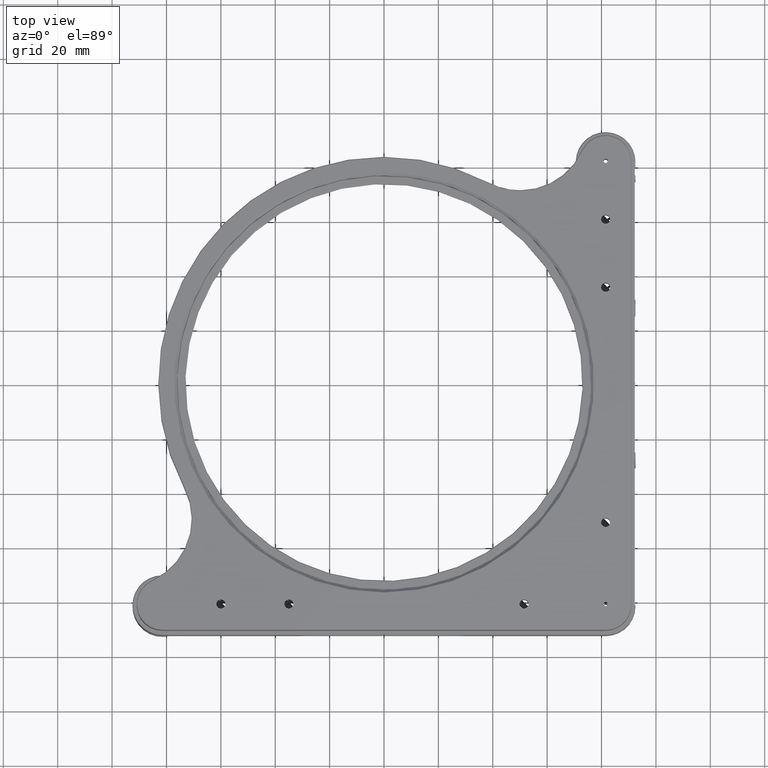
[diagram: clean part render]
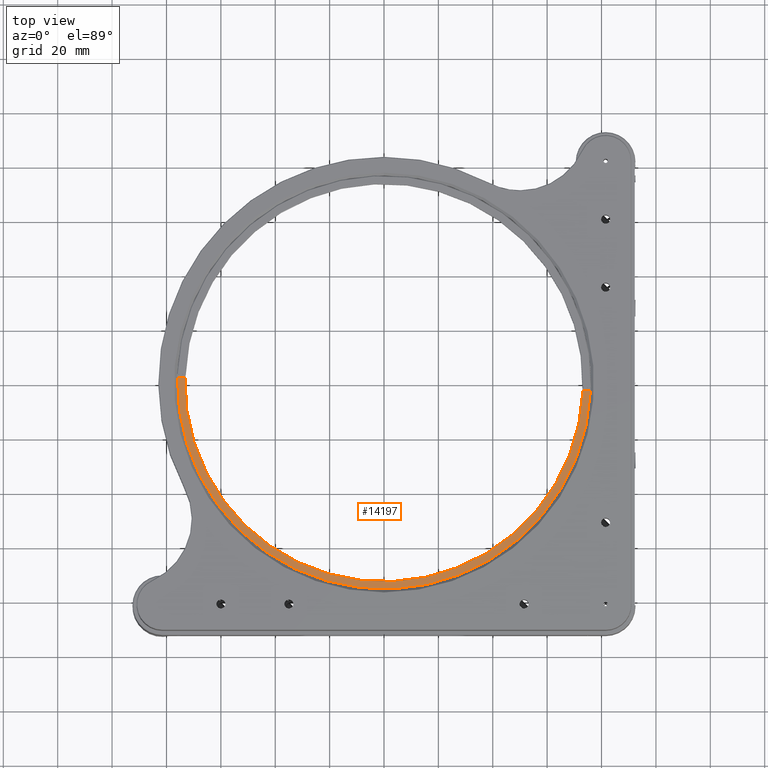
[diagram: same view with one face highlighted and labeled with its STEP entity id]
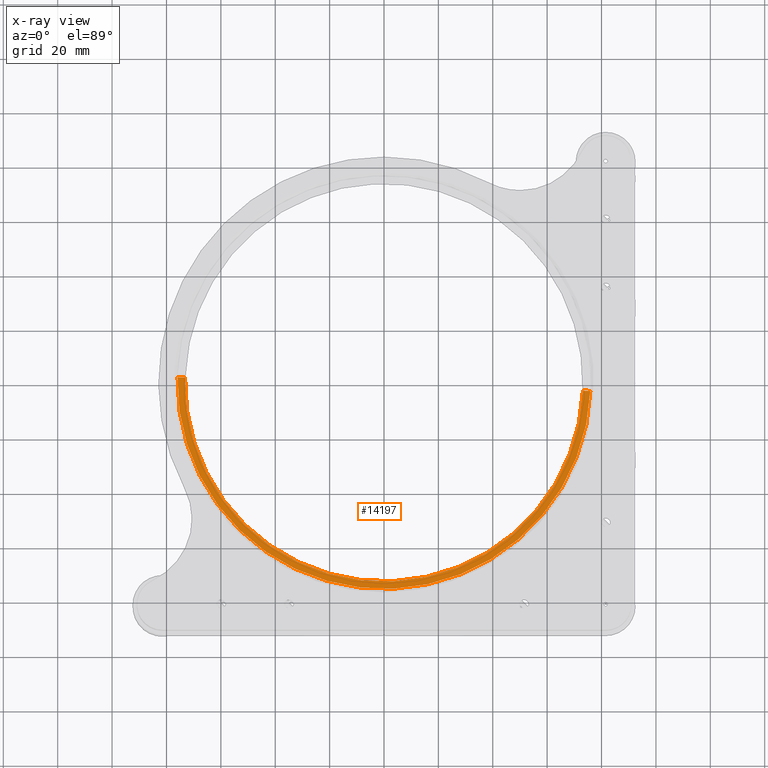
[diagram: x-ray of the same camera — body ghosted, the highlighted face saturated]
A machine part, top view. The second image highlights one B-rep face of the part: STEP entity #14197.
The next image is the same camera in x-ray: the body ghosted, the highlighted face saturated — about 0% of this face is hidden behind the body in this view.
In plain terms, the highlighted planar face has unit normal (0, 0, 1).
Its self-contained STEP definition (entity closure, byte-faithful):
#273 = EDGE_CURVE ( 'NONE', #14701, #4792, #14715, .T. ) ;
#390 = VECTOR ( 'NONE', #15418, 1000.000000000000000 ) ;
#433 = CARTESIAN_POINT ( 'NONE',  ( -6.696032378222366745E-13, 5.872038966181489995E-13, 34.49528137423860130 ) ) ;
#1407 = PLANE ( 'NONE',  #7364 ) ;
#2355 = CARTESIAN_POINT ( 'NONE',  ( -6.696032378222366745E-13, 5.872038966181489995E-13, 34.49528137423860130 ) ) ;
#2704 = DIRECTION ( 'NONE',  ( -0.000000000000000000, -0.000000000000000000, -1.000000000000000000 ) ) ;
#2885 = DIRECTION ( 'NONE',  ( 0.9994441930894798487, -0.03333624003571092342, 0.000000000000000000 ) ) ;
#3525 = LINE ( 'NONE', #9221, #11886 ) ;
#4174 = CARTESIAN_POINT ( 'NONE',  ( -49972.22965621801995, 1666.212335269693995, 34.49528137423860130 ) ) ;
#4618 = CARTESIAN_POINT ( 'NONE',  ( 73.18682938650680114, -3.041464178689262887, 34.49528137423860130 ) ) ;
#4792 = VERTEX_POINT ( 'NONE', #6768 ) ;
#4972 = ORIENTED_EDGE ( 'NONE', *, *, #10110, .T. ) ;
#6446 = VERTEX_POINT ( 'NONE', #4618 ) ;
#6768 = CARTESIAN_POINT ( 'NONE',  ( 75.88541602116751505, -3.131474939102131483, 34.49528137423860130 ) ) ;
#6825 = DIRECTION ( 'NONE',  ( 0.000000000000000000, 0.000000000000000000, 1.000000000000000000 ) ) ;
#7364 = AXIS2_PLACEMENT_3D ( 'NONE', #16663, #6825, #14064 ) ;
#7453 = EDGE_CURVE ( 'NONE', #14701, #12133, #17918, .T. ) ;
#7613 = DIRECTION ( 'NONE',  ( 0.9994441930894799597, -0.03333624003571091649, 0.000000000000000000 ) ) ;
#7638 = ORIENTED_EDGE ( 'NONE', *, *, #273, .T. ) ;
#8806 = AXIS2_PLACEMENT_3D ( 'NONE', #433, #10587, #7613 ) ;
#9221 = CARTESIAN_POINT ( 'NONE',  ( -49972.22965621801995, 1666.212335269693995, 34.49528137423860130 ) ) ;
#10110 = EDGE_CURVE ( 'NONE', #6446, #12133, #14688, .T. ) ;
#10587 = DIRECTION ( 'NONE',  ( 0.000000000000000000, 0.000000000000000000, 1.000000000000000000 ) ) ;
#10776 = ORIENTED_EDGE ( 'NONE', *, *, #7453, .F. ) ;
#11886 = VECTOR ( 'NONE', #13842, 1000.000000000000000 ) ;
#12133 = VERTEX_POINT ( 'NONE', #12625 ) ;
#12555 = CARTESIAN_POINT ( 'NONE',  ( -75.92541950921170724, 1.932141907395929836, 34.49528137423860130 ) ) ;
#12625 = CARTESIAN_POINT ( 'NONE',  ( -73.22683287455100754, 1.842131146983060574, 34.49528137423860130 ) ) ;
#13418 = EDGE_LOOP ( 'NONE', ( #10776, #7638, #15513, #4972 ) ) ;
#13842 = DIRECTION ( 'NONE',  ( 0.9994441930894798487, -0.03333624003571091649, 0.000000000000000000 ) ) ;
#14064 = DIRECTION ( 'NONE',  ( 0.9994441930894798487, -0.03333624003571091649, 0.000000000000000000 ) ) ;
#14197 = ADVANCED_FACE ( 'NONE', ( #17019 ), #1407, .T. ) ;
#14688 = CIRCLE ( 'NONE', #17349, 73.25000000000005684 ) ;
#14701 = VERTEX_POINT ( 'NONE', #12555 ) ;
#14715 = CIRCLE ( 'NONE', #8806, 75.94999999999998863 ) ;
#15418 = DIRECTION ( 'NONE',  ( 0.9994441930894798487, -0.03333624003571091649, 0.000000000000000000 ) ) ;
#15513 = ORIENTED_EDGE ( 'NONE', *, *, #17622, .F. ) ;
#16663 = CARTESIAN_POINT ( 'NONE',  ( -6.696032378222366745E-13, 5.872038966181489995E-13, 34.49528137423860130 ) ) ;
#17019 = FACE_OUTER_BOUND ( 'NONE', #13418, .T. ) ;
#17349 = AXIS2_PLACEMENT_3D ( 'NONE', #2355, #2704, #2885 ) ;
#17622 = EDGE_CURVE ( 'NONE', #6446, #4792, #3525, .T. ) ;
#17918 = LINE ( 'NONE', #4174, #390 ) ;